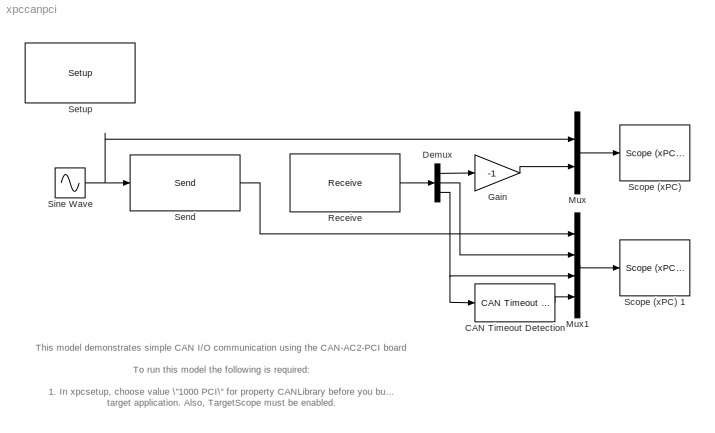
MODEL xpccanpci
KIND model
CONFIG AbsTol = auto
CONFIG FixedStep = auto
CONFIG MaxStep = auto
CONFIG MinStep = auto
CONFIG RelTol = 1e-3
CONFIG Solver = FixedStepDiscrete
CONFIG SolverMode = Auto
CONFIG StartTime = 0.0
CONFIG StopTime = 300
BLOCK [Reference] CAN Timeout Detection  REF=xpclib/CAN/Utilities/CAN Timeout Detection
  AncestorBlock = xpclib_pc104/CAN/Utilities/CAN Timeout Detection
  Ports = [1, 1]
  SourceBlock = xpclib/CAN/Utilities/CAN Timeout Detection
  SourceType = xpccantimeout
  timeout = 0.02
BLOCK [Demux] Demux
  BusSelectionMode = off
  Outputs = 3
  Ports = [1, 3]
BLOCK [Gain] Gain
  Gain = -1
  Multiplication = Element-wise(K.*u)
  SaturateOnIntegerOverflow = on
BLOCK [Mux] Mux
  DisplayOption = bar
  Inputs = 2
  Ports = [2, 1]
BLOCK [Mux] Mux1
  DisplayOption = bar
  Inputs = 4
  Ports = [4, 1]
BLOCK [Reference] Receive   REF=xpclib/CAN/Softing/CAN-AC2-PCI\nSJA 1000/Receive 
  Ports = [0, 1]
  SourceBlock = xpclib/CAN/Softing/CAN-AC2-PCI\nSJA 1000/Receive
  SourceType = canac2pcireceive
  board = 1
  canPort = CAN 2
  ididx = [0]
  ids = [50]
  inten = off
  output = Data - Status - Timestamp
  range = Standard (11-bit)
  ts = 0.01
BLOCK [Reference] Scope (xPC)   REF=xpclib/Misc./Scope (xPC) 
  Ports = [1]
  SourceBlock = xpclib/Misc./Scope (xPC)
  SourceType = xpcscopeblock
  autostart = on
  grid = on
  interleave = 1
  noprepostsamples = 0
  nosamples = 250
  scopeno = 1
  scopetype = Target
  triggerlevel = 0.0
  triggermode = FreeRun
  triggerscope = 1
  triggersignal = 1
  triggerslope = either
  viewmode = Graphical rolling
  ylimits = [0,0]
BLOCK [Reference] Scope (xPC) 1  REF=xpclib/Misc./Scope (xPC) 
  Ports = [1]
  SourceBlock = xpclib/Misc./Scope (xPC)
  SourceType = xpcscopeblock
  autostart = on
  grid = on
  interleave = 1
  noprepostsamples = 0
  nosamples = 10
  scopeno = 2
  scopetype = Target
  triggerlevel = 0.0
  triggermode = FreeRun
  triggerscope = 1
  triggersignal = 1
  triggerslope = either
  viewmode = Numerical
  ylimits = [0,0]
BLOCK [Reference] Send   REF=xpclib/CAN/Softing/CAN-AC2-PCI\nSJA 1000/Send 
  Ports = [1, 1]
  SourceBlock = xpclib/CAN/Softing/CAN-AC2-PCI\nSJA 1000/Send
  SourceType = canac2pcisend
  board = 1
  canPort = CAN 1
  ididx = [0]
  ids = [50]
  output = on
  range = Standard (11-bit)
  sizes = [8]
  ts = 0.01
BLOCK [Reference] Setup   REF=xpclib/CAN/Softing/CAN-AC2-PCI\nSJA 1000/Setup 
  Ports = []
  SourceBlock = xpclib/CAN/Softing/CAN-AC2-PCI\nSJA 1000/Setup
  SourceType = canac2pcisetup
  board = 1
  can1Baudrate = 1 MBaud
  can1UserBR = [1,1,4,3]
  can2Baudrate = 1 MBaud
  can2UserBR = [1,1,4,3]
  init = []
  ioBaseAddress = -1
  term = []
BLOCK [Sin] Sine Wave
  Amplitude = 1
  Frequency = 5
  Phase = 0
  SampleTime = 0.01
  VectorParams1D = on
LINE CAN Timeout Detection:1 -> Mux1:4
LINE Demux:1 -> Gain:1
LINE Demux:2 -> Mux1:2
NET Demux:3 -> CAN Timeout Detection:1, Mux1:3
LINE Gain:1 -> Mux:2
LINE Mux1:1 -> Scope (xPC) 1:1
LINE Mux:1 -> Scope (xPC) :1
LINE Receive :1 -> Demux:1
LINE Send :1 -> Mux1:1
NET Sine Wave:1 -> Mux:1, Send :1
note: NET lines group one-source signal fan-out (src -> all destinations, sorted); 1:1 wires keep LINE
